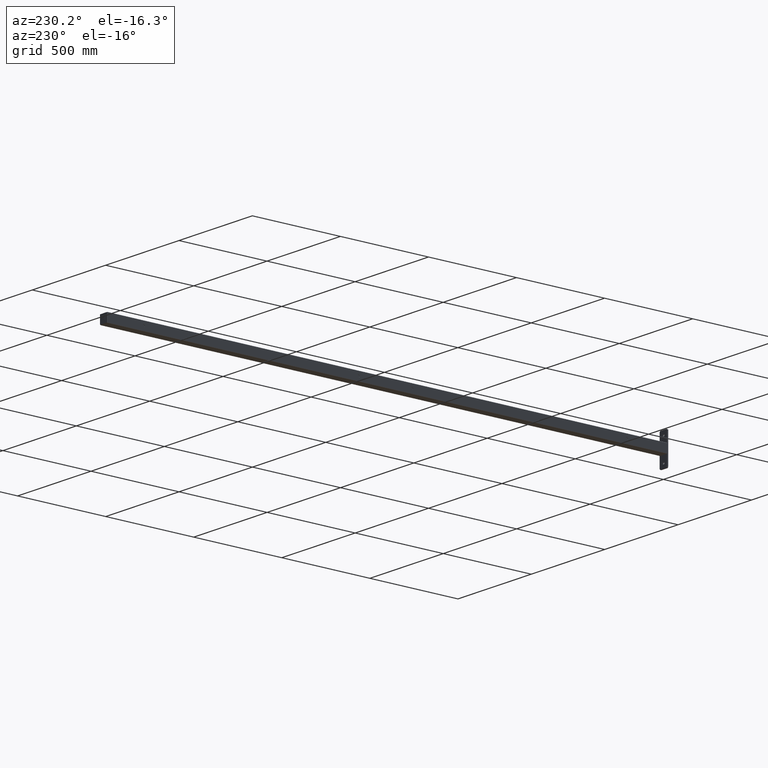
[diagram: clean part render]
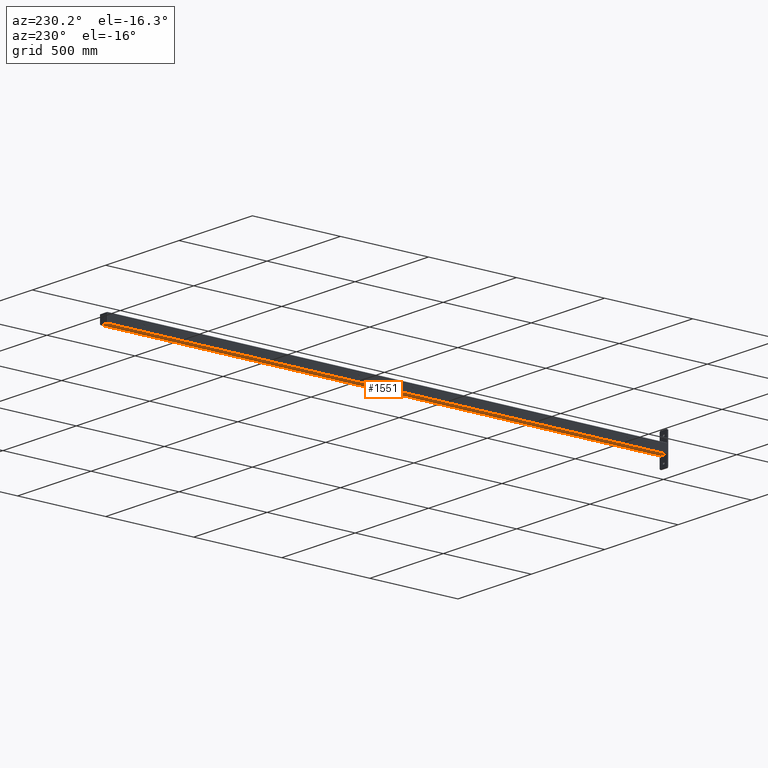
[diagram: same view with one face highlighted and labeled with its STEP entity id]
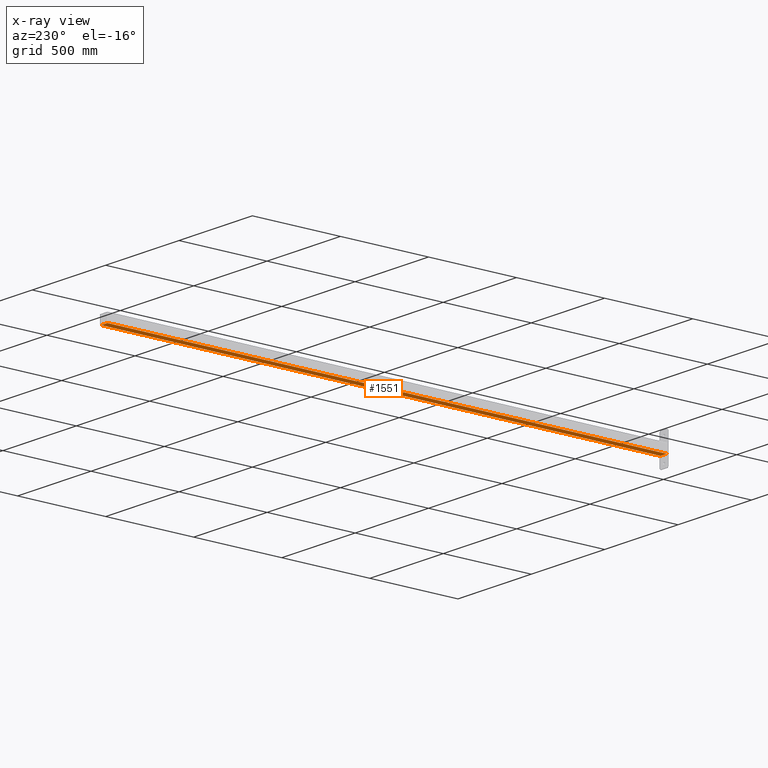
[diagram: x-ray of the same camera — body ghosted, the highlighted face saturated]
A machine part, auxiliary view. The second image highlights one B-rep face of the part: STEP entity #1551.
The next image is the same camera in x-ray: the body ghosted, the highlighted face saturated — about 0% of this face is hidden behind the body in this view.
In plain terms, the highlighted planar face has unit normal (0, 0, 1).
Its self-contained STEP definition (entity closure, byte-faithful):
#6 = CARTESIAN_POINT ( 'NONE',  ( 0.9999999999999998890, 0.8506000000000000227, -62.50000000000000000 ) ) ;
#147 = LINE ( 'NONE', #1421, #2124 ) ;
#258 = VECTOR ( 'NONE', #553, 39.37007874015748143 ) ;
#269 = EDGE_LOOP ( 'NONE', ( #3109, #300, #3861, #1021 ) ) ;
#300 = ORIENTED_EDGE ( 'NONE', *, *, #2557, .F. ) ;
#390 = CARTESIAN_POINT ( 'NONE',  ( 0.9999999999999998890, -0.8506000000000000227, 62.50000000000000000 ) ) ;
#450 = AXIS2_PLACEMENT_3D ( 'NONE', #1484, #4067, #2771 ) ;
#462 = EDGE_CURVE ( 'NONE', #709, #4058, #147, .T. ) ;
#553 = DIRECTION ( 'NONE',  ( -0.000000000000000000, 1.000000000000000000, -0.000000000000000000 ) ) ;
#594 = CARTESIAN_POINT ( 'NONE',  ( 0.9999999999999998890, 0.8506000000000000227, 62.50000000000000000 ) ) ;
#709 = VERTEX_POINT ( 'NONE', #1664 ) ;
#819 = CARTESIAN_POINT ( 'NONE',  ( 0.9999999999999998890, 0.8506000000000000227, 62.50000000000000000 ) ) ;
#1021 = ORIENTED_EDGE ( 'NONE', *, *, #3776, .T. ) ;
#1421 = CARTESIAN_POINT ( 'NONE',  ( 0.9999999999999998890, 0.8506000000000000227, -62.50000000000000000 ) ) ;
#1484 = CARTESIAN_POINT ( 'NONE',  ( 0.9999999999999998890, 0.8506000000000000227, 62.50000000000000000 ) ) ;
#1551 = ADVANCED_FACE ( 'NONE', ( #2435 ), #3473, .F. ) ;
#1664 = CARTESIAN_POINT ( 'NONE',  ( 0.9999999999999998890, -0.8506000000000000227, -62.50000000000000000 ) ) ;
#1952 = CARTESIAN_POINT ( 'NONE',  ( 0.9999999999999998890, 0.8506000000000000227, 62.50000000000000000 ) ) ;
#2124 = VECTOR ( 'NONE', #2686, 39.37007874015748143 ) ;
#2297 = CARTESIAN_POINT ( 'NONE',  ( 0.9999999999999998890, -0.8506000000000000227, 62.50000000000000000 ) ) ;
#2334 = EDGE_CURVE ( 'NONE', #2982, #4053, #4006, .T. ) ;
#2349 = DIRECTION ( 'NONE',  ( -0.000000000000000000, -0.000000000000000000, -1.000000000000000000 ) ) ;
#2435 = FACE_OUTER_BOUND ( 'NONE', #269, .T. ) ;
#2557 = EDGE_CURVE ( 'NONE', #4053, #4058, #4088, .T. ) ;
#2686 = DIRECTION ( 'NONE',  ( -0.000000000000000000, 1.000000000000000000, -0.000000000000000000 ) ) ;
#2771 = DIRECTION ( 'NONE',  ( 0.000000000000000000, 0.000000000000000000, 1.000000000000000000 ) ) ;
#2982 = VERTEX_POINT ( 'NONE', #2297 ) ;
#3053 = VECTOR ( 'NONE', #3463, 39.37007874015748143 ) ;
#3109 = ORIENTED_EDGE ( 'NONE', *, *, #462, .T. ) ;
#3463 = DIRECTION ( 'NONE',  ( -0.000000000000000000, -0.000000000000000000, -1.000000000000000000 ) ) ;
#3473 = PLANE ( 'NONE',  #450 ) ;
#3655 = VECTOR ( 'NONE', #2349, 39.37007874015748143 ) ;
#3776 = EDGE_CURVE ( 'NONE', #2982, #709, #3942, .T. ) ;
#3861 = ORIENTED_EDGE ( 'NONE', *, *, #2334, .F. ) ;
#3942 = LINE ( 'NONE', #390, #3655 ) ;
#4006 = LINE ( 'NONE', #819, #258 ) ;
#4053 = VERTEX_POINT ( 'NONE', #594 ) ;
#4058 = VERTEX_POINT ( 'NONE', #6 ) ;
#4067 = DIRECTION ( 'NONE',  ( -1.000000000000000000, 0.000000000000000000, 0.000000000000000000 ) ) ;
#4088 = LINE ( 'NONE', #1952, #3053 ) ;